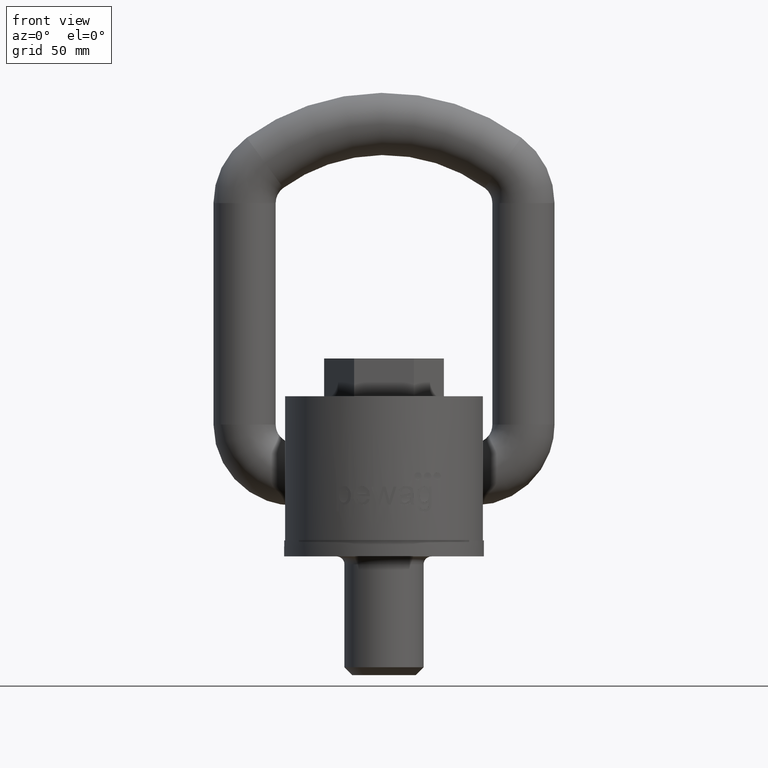
[diagram: clean part render]
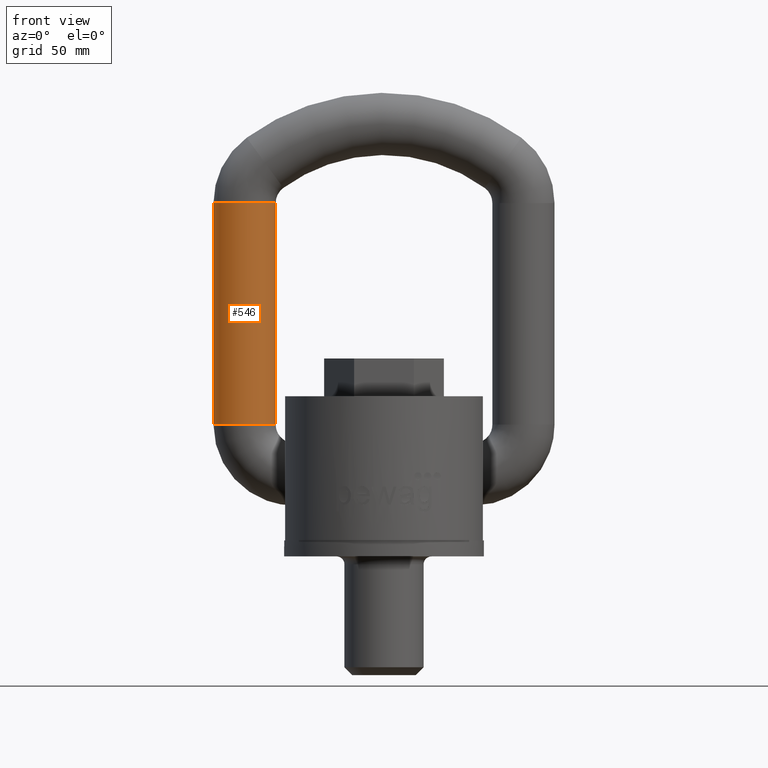
[diagram: same view with one face highlighted and labeled with its STEP entity id]
A machine part, front view. The second image highlights one B-rep face of the part: STEP entity #546.
In plain terms, the highlighted cylindrical surface (bore or boss wall) has radius 16.5 mm, axis along (0, 0, -1).
Its self-contained STEP definition (entity closure, byte-faithful):
#546=ADVANCED_FACE('',(#629,#630),#567,.T.);
#567=CYLINDRICAL_SURFACE('',#2625,16.5);
#629=FACE_BOUND('',#795,.T.);
#630=FACE_BOUND('',#796,.T.);
#795=EDGE_LOOP('',(#1775));
#796=EDGE_LOOP('',(#1776));
#1150=CIRCLE('',#2622,16.5);
#1151=CIRCLE('',#2624,16.5);
#1775=ORIENTED_EDGE('',*,*,#2311,.T.);
#1776=ORIENTED_EDGE('',*,*,#2310,.F.);
#1995=VERTEX_POINT('',#5114);
#1996=VERTEX_POINT('',#5117);
#2310=EDGE_CURVE('',#1995,#1995,#1150,.T.);
#2311=EDGE_CURVE('',#1996,#1996,#1151,.T.);
#2622=AXIS2_PLACEMENT_3D('',#5113,#3076,#3077);
#2624=AXIS2_PLACEMENT_3D('',#5116,#3080,#3081);
#2625=AXIS2_PLACEMENT_3D('',#5118,#3082,#3083);
#3076=DIRECTION('',(-1.66533453693773E-16,0.,-1.));
#3077=DIRECTION('',(-1.,0.,0.));
#3080=DIRECTION('',(-1.66533453693773E-16,0.,-1.));
#3081=DIRECTION('',(-1.,0.,0.));
#3082=DIRECTION('',(0.,0.,-1.));
#3083=DIRECTION('',(-1.,0.,0.));
#5113=CARTESIAN_POINT('',(-74.,51.,61.5));
#5114=CARTESIAN_POINT('',(-90.5,51.,61.5));
#5116=CARTESIAN_POINT('',(-74.,51.,178.992307237088));
#5117=CARTESIAN_POINT('',(-90.5,51.,178.992307237088));
#5118=CARTESIAN_POINT('',(-74.,51.,178.992307237088));